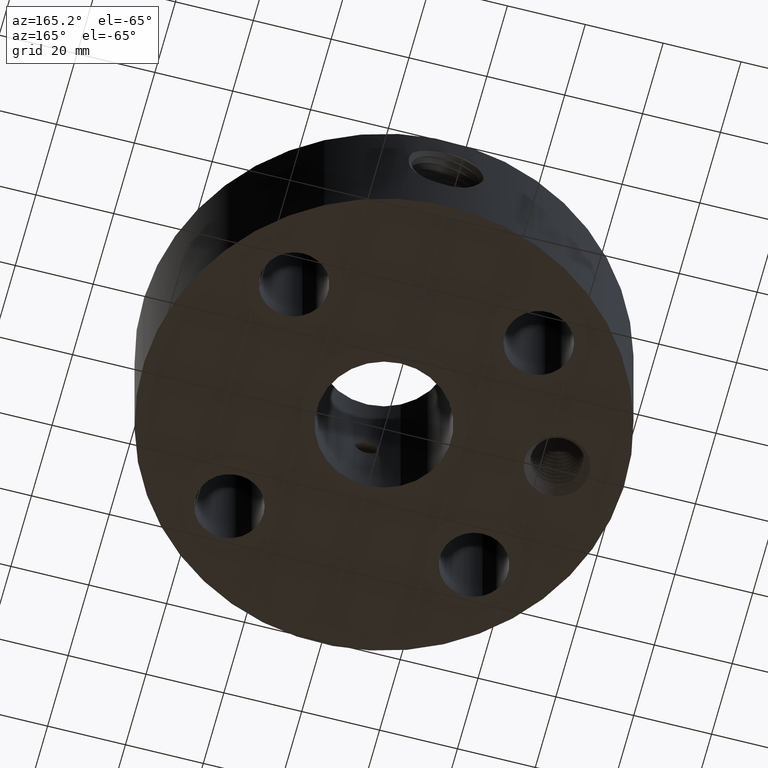
[diagram: clean part render]
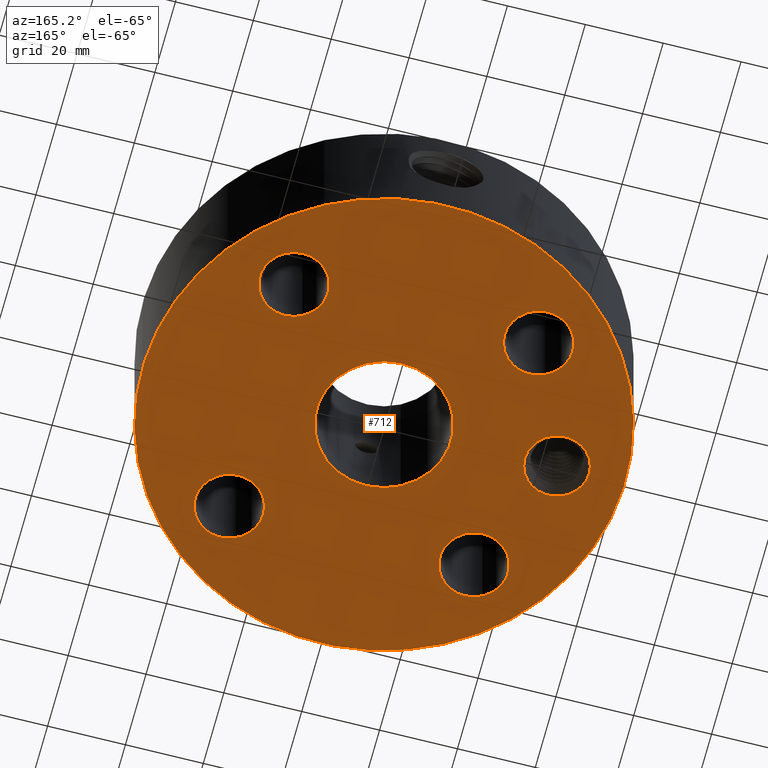
[diagram: same view with one face highlighted and labeled with its STEP entity id]
A machine part, auxiliary view. The second image highlights one B-rep face of the part: STEP entity #712.
In plain terms, the highlighted planar face has unit normal (0, 0, -1).
Its self-contained STEP definition (entity closure, byte-faithful):
#252=AXIS2_PLACEMENT_3D('Circle Axis2P3D',#250,#251,$) ;
#543=AXIS2_PLACEMENT_3D('Circle Axis2P3D',#541,#542,$) ;
#598=AXIS2_PLACEMENT_3D('Plane Axis2P3D',#595,#596,#597) ;
#602=AXIS2_PLACEMENT_3D('Circle Axis2P3D',#600,#601,$) ;
#611=AXIS2_PLACEMENT_3D('Circle Axis2P3D',#609,#610,$) ;
#620=AXIS2_PLACEMENT_3D('Circle Axis2P3D',#618,#619,$) ;
#629=AXIS2_PLACEMENT_3D('Circle Axis2P3D',#627,#628,$) ;
#638=AXIS2_PLACEMENT_3D('Circle Axis2P3D',#636,#637,$) ;
#647=AXIS2_PLACEMENT_3D('Circle Axis2P3D',#645,#646,$) ;
#660=AXIS2_PLACEMENT_3D('Circle Axis2P3D',#658,#659,$) ;
#669=AXIS2_PLACEMENT_3D('Circle Axis2P3D',#667,#668,$) ;
#678=AXIS2_PLACEMENT_3D('Circle Axis2P3D',#676,#677,$) ;
#687=AXIS2_PLACEMENT_3D('Circle Axis2P3D',#685,#686,$) ;
#696=AXIS2_PLACEMENT_3D('Circle Axis2P3D',#694,#695,$) ;
#705=AXIS2_PLACEMENT_3D('Circle Axis2P3D',#703,#704,$) ;
#247=CARTESIAN_POINT('Vertex',(0.326009366252,0.596756142088,0.0600000000002)) ;
#250=CARTESIAN_POINT('Axis2P3D Location',(0.,0.,0.0600000000002)) ;
#254=CARTESIAN_POINT('Vertex',(-0.326009366252,-0.596756142088,0.0600000000002)) ;
#541=CARTESIAN_POINT('Axis2P3D Location',(0.,0.,0.0600000000002)) ;
#595=CARTESIAN_POINT('Axis2P3D Location',(0.,0.680000000003,0.0600000000002)) ;
#600=CARTESIAN_POINT('Axis2P3D Location',(0.,0.,0.0600000000002)) ;
#604=CARTESIAN_POINT('Vertex',(-1.1697983142,-2.14130145102,0.0600000000002)) ;
#606=CARTESIAN_POINT('Vertex',(1.1697983142,2.14130145102,0.0600000000002)) ;
#609=CARTESIAN_POINT('Axis2P3D Location',(0.,0.,0.0600000000002)) ;
#618=CARTESIAN_POINT('Axis2P3D Location',(-1.75000000001,0.,0.0600000000002)) ;
#622=CARTESIAN_POINT('Vertex',(-1.46423717829,-0.156112941009,0.0600000000002)) ;
#624=CARTESIAN_POINT('Vertex',(-2.03576282172,0.156112941009,0.0600000000002)) ;
#627=CARTESIAN_POINT('Axis2P3D Location',(-1.75000000001,0.,0.0600000000002)) ;
#636=CARTESIAN_POINT('Axis2P3D Location',(1.23743686708,-1.23743686708,0.0600000000002)) ;
#640=CARTESIAN_POINT('Vertex',(1.54020285093,-1.4028386779,0.0600000000002)) ;
#642=CARTESIAN_POINT('Vertex',(0.934670883228,-1.07203505626,0.0600000000002)) ;
#645=CARTESIAN_POINT('Axis2P3D Location',(1.23743686708,-1.23743686708,0.0600000000002)) ;
#658=CARTESIAN_POINT('Axis2P3D Location',(-1.23743686708,-1.23743686708,0.0600000000002)) ;
#662=CARTESIAN_POINT('Vertex',(-1.07203505626,-0.934670883228,0.0600000000002)) ;
#664=CARTESIAN_POINT('Vertex',(-1.4028386779,-1.54020285093,0.0600000000002)) ;
#667=CARTESIAN_POINT('Axis2P3D Location',(-1.23743686708,-1.23743686708,0.0600000000002)) ;
#676=CARTESIAN_POINT('Axis2P3D Location',(-1.23743686708,1.23743686708,0.0600000000002)) ;
#680=CARTESIAN_POINT('Vertex',(-0.934670883228,1.07203505626,0.0600000000002)) ;
#682=CARTESIAN_POINT('Vertex',(-1.54020285093,1.4028386779,0.0600000000002)) ;
#685=CARTESIAN_POINT('Axis2P3D Location',(-1.23743686708,1.23743686708,0.0600000000002)) ;
#694=CARTESIAN_POINT('Axis2P3D Location',(1.23743686708,1.23743686708,0.0600000000002)) ;
#698=CARTESIAN_POINT('Vertex',(1.07203505626,0.934670883228,0.0600000000002)) ;
#700=CARTESIAN_POINT('Vertex',(1.4028386779,1.54020285093,0.0600000000002)) ;
#703=CARTESIAN_POINT('Axis2P3D Location',(1.23743686708,1.23743686708,0.0600000000002)) ;
#251=DIRECTION('Axis2P3D Direction',(0.,0.,-0.0393700787402)) ;
#542=DIRECTION('Axis2P3D Direction',(0.,0.,-0.0393700787402)) ;
#596=DIRECTION('Axis2P3D Direction',(0.,0.,-0.0393700787402)) ;
#597=DIRECTION('Axis2P3D XDirection',(0.0393700787402,0.,0.)) ;
#601=DIRECTION('Axis2P3D Direction',(0.,0.,-0.0393700787402)) ;
#610=DIRECTION('Axis2P3D Direction',(0.,0.,-0.0393700787402)) ;
#619=DIRECTION('Axis2P3D Direction',(0.,0.,-0.0393700787402)) ;
#628=DIRECTION('Axis2P3D Direction',(0.,0.,-0.0393700787402)) ;
#637=DIRECTION('Axis2P3D Direction',(0.,0.,-0.0393700787402)) ;
#646=DIRECTION('Axis2P3D Direction',(0.,0.,-0.0393700787402)) ;
#659=DIRECTION('Axis2P3D Direction',(0.,0.,-0.0393700787402)) ;
#668=DIRECTION('Axis2P3D Direction',(0.,0.,-0.0393700787402)) ;
#677=DIRECTION('Axis2P3D Direction',(0.,0.,-0.0393700787402)) ;
#686=DIRECTION('Axis2P3D Direction',(0.,0.,-0.0393700787402)) ;
#695=DIRECTION('Axis2P3D Direction',(0.,0.,-0.0393700787402)) ;
#704=DIRECTION('Axis2P3D Direction',(0.,0.,-0.0393700787402)) ;
#615=ORIENTED_EDGE('',*,*,#608,.T.) ;
#616=ORIENTED_EDGE('',*,*,#613,.T.) ;
#633=ORIENTED_EDGE('',*,*,#626,.F.) ;
#634=ORIENTED_EDGE('',*,*,#631,.F.) ;
#651=ORIENTED_EDGE('',*,*,#644,.F.) ;
#652=ORIENTED_EDGE('',*,*,#649,.F.) ;
#655=ORIENTED_EDGE('',*,*,#256,.F.) ;
#656=ORIENTED_EDGE('',*,*,#545,.F.) ;
#673=ORIENTED_EDGE('',*,*,#666,.F.) ;
#674=ORIENTED_EDGE('',*,*,#671,.F.) ;
#691=ORIENTED_EDGE('',*,*,#684,.F.) ;
#692=ORIENTED_EDGE('',*,*,#689,.F.) ;
#709=ORIENTED_EDGE('',*,*,#702,.F.) ;
#710=ORIENTED_EDGE('',*,*,#707,.F.) ;
#635=FACE_BOUND('',#632,.T.) ;
#653=FACE_BOUND('',#650,.T.) ;
#657=FACE_BOUND('',#654,.T.) ;
#675=FACE_BOUND('',#672,.T.) ;
#693=FACE_BOUND('',#690,.T.) ;
#711=FACE_BOUND('',#708,.T.) ;
#712=ADVANCED_FACE('PartBody',(#617,#635,#653,#657,#675,#693,#711),#599,.T.) ;
#253=CIRCLE('generated circle',#252,0.680000000003) ;
#544=CIRCLE('generated circle',#543,0.680000000003) ;
#603=CIRCLE('generated circle',#602,2.44000000001) ;
#612=CIRCLE('generated circle',#611,2.44000000001) ;
#621=CIRCLE('generated circle',#620,0.325625000001) ;
#630=CIRCLE('generated circle',#629,0.325625000001) ;
#639=CIRCLE('generated circle',#638,0.345000000001) ;
#648=CIRCLE('generated circle',#647,0.345000000001) ;
#661=CIRCLE('generated circle',#660,0.345000000001) ;
#670=CIRCLE('generated circle',#669,0.345000000001) ;
#679=CIRCLE('generated circle',#678,0.345000000001) ;
#688=CIRCLE('generated circle',#687,0.345000000001) ;
#697=CIRCLE('generated circle',#696,0.345000000001) ;
#706=CIRCLE('generated circle',#705,0.345000000001) ;
#256=EDGE_CURVE('',#248,#255,#253,.T.) ;
#545=EDGE_CURVE('',#255,#248,#544,.T.) ;
#608=EDGE_CURVE('',#605,#607,#603,.T.) ;
#613=EDGE_CURVE('',#607,#605,#612,.T.) ;
#626=EDGE_CURVE('',#623,#625,#621,.T.) ;
#631=EDGE_CURVE('',#625,#623,#630,.T.) ;
#644=EDGE_CURVE('',#641,#643,#639,.T.) ;
#649=EDGE_CURVE('',#643,#641,#648,.T.) ;
#666=EDGE_CURVE('',#663,#665,#661,.T.) ;
#671=EDGE_CURVE('',#665,#663,#670,.T.) ;
#684=EDGE_CURVE('',#681,#683,#679,.T.) ;
#689=EDGE_CURVE('',#683,#681,#688,.T.) ;
#702=EDGE_CURVE('',#699,#701,#697,.T.) ;
#707=EDGE_CURVE('',#701,#699,#706,.T.) ;
#614=EDGE_LOOP('',(#615,#616)) ;
#632=EDGE_LOOP('',(#633,#634)) ;
#650=EDGE_LOOP('',(#651,#652)) ;
#654=EDGE_LOOP('',(#655,#656)) ;
#672=EDGE_LOOP('',(#673,#674)) ;
#690=EDGE_LOOP('',(#691,#692)) ;
#708=EDGE_LOOP('',(#709,#710)) ;
#617=FACE_OUTER_BOUND('',#614,.T.) ;
#599=PLANE('',#598) ;
#248=VERTEX_POINT('',#247) ;
#255=VERTEX_POINT('',#254) ;
#605=VERTEX_POINT('',#604) ;
#607=VERTEX_POINT('',#606) ;
#623=VERTEX_POINT('',#622) ;
#625=VERTEX_POINT('',#624) ;
#641=VERTEX_POINT('',#640) ;
#643=VERTEX_POINT('',#642) ;
#663=VERTEX_POINT('',#662) ;
#665=VERTEX_POINT('',#664) ;
#681=VERTEX_POINT('',#680) ;
#683=VERTEX_POINT('',#682) ;
#699=VERTEX_POINT('',#698) ;
#701=VERTEX_POINT('',#700) ;